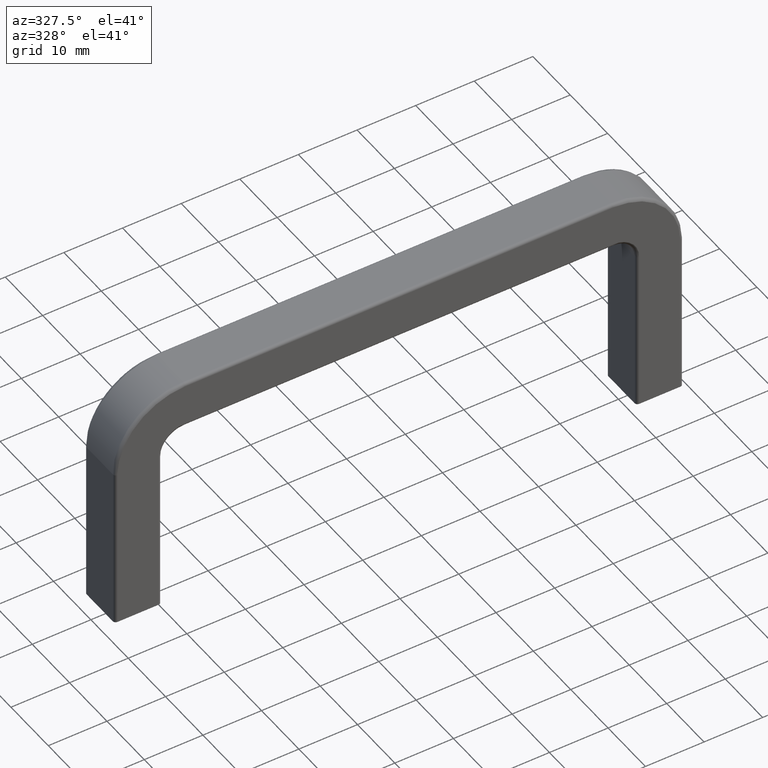
[diagram: clean part render]
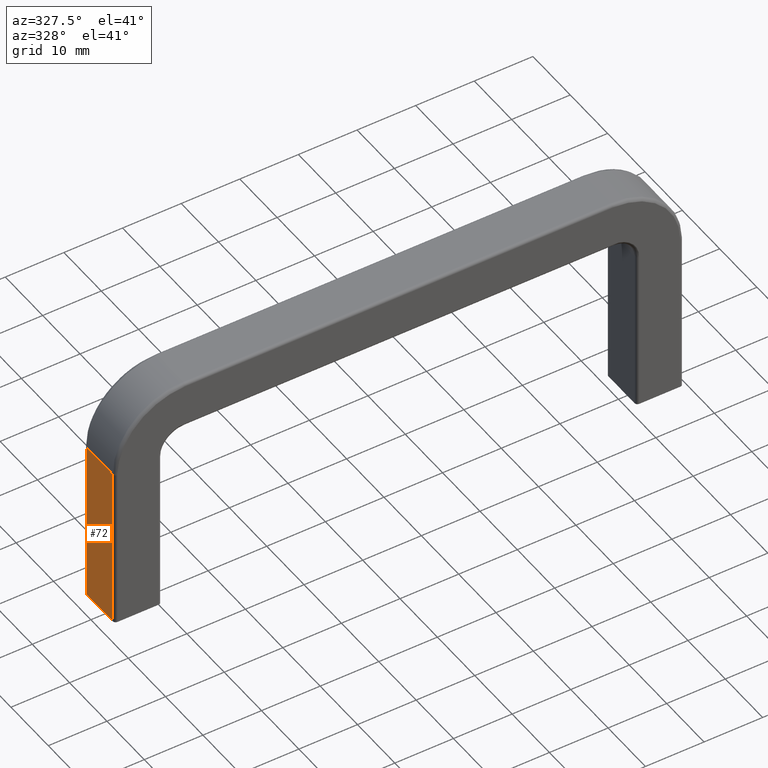
[diagram: same view with one face highlighted and labeled with its STEP entity id]
A machine part, auxiliary view. The second image highlights one B-rep face of the part: STEP entity #72.
In plain terms, the highlighted planar face has unit normal (-1, 0, 0).
Its self-contained STEP definition (entity closure, byte-faithful):
#72=ADVANCED_FACE('',(#401),#400,.T.);
#400=PLANE('',#862);
#401=FACE_OUTER_BOUND('',#863,.T.);
#859=CARTESIAN_POINT('',(-4.85000000000E+01,-4.20000000000E+00,-2.80000000000E+00));
#860=DIRECTION('',(-1.00000000000E+00,0.00000000000E+00,0.00000000000E+00));
#861=DIRECTION('',(0.00000000000E+00,0.00000000000E+00,1.00000000000E+00));
#862=AXIS2_PLACEMENT_3D('',#859,#860,#861);
#863=EDGE_LOOP('',(#1072,#1073,#1074,#1075));
#1072=ORIENTED_EDGE('',*,*,#1197,.T.);
#1073=ORIENTED_EDGE('',*,*,#1179,.F.);
#1074=ORIENTED_EDGE('',*,*,#1182,.F.);
#1075=ORIENTED_EDGE('',*,*,#1199,.T.);
#1179=EDGE_CURVE('',#1307,#1622,#1629,.T.);
#1182=EDGE_CURVE('',#1642,#1307,#1649,.T.);
#1197=EDGE_CURVE('',#1745,#1622,#1746,.T.);
#1199=EDGE_CURVE('',#1642,#1745,#1758,.T.);
#1307=VERTEX_POINT('',#1887);
#1622=VERTEX_POINT('',#2081);
#1629=LINE('',#2086,#2087);
#1642=VERTEX_POINT('',#2093);
#1649=LINE('',#2098,#2099);
#1745=VERTEX_POINT('',#2153);
#1746=LINE('',#2154,#2155);
#1758=LINE('',#2161,#2162);
#1887=CARTESIAN_POINT('',(-4.85000000000E+01,3.50000000000E+00,2.80000000000E+01));
#2081=CARTESIAN_POINT('',(-4.85000000000E+01,-3.50000000000E+00,2.80000000000E+01));
#2086=CARTESIAN_POINT('',(-4.85000000000E+01,3.50000000000E+00,2.80000000000E+01));
#2087=VECTOR('',#2088,7.00000000000E+00);
#2088=DIRECTION('',(0.00000000000E+00,-1.00000000000E+00,0.00000000000E+00));
#2093=CARTESIAN_POINT('',(-4.85000000000E+01,3.50000000000E+00,0.00000000000E+00));
#2098=CARTESIAN_POINT('',(-4.85000000000E+01,3.50000000000E+00,0.00000000000E+00));
#2099=VECTOR('',#2100,2.80000000000E+01);
#2100=DIRECTION('',(0.00000000000E+00,0.00000000000E+00,1.00000000000E+00));
#2153=CARTESIAN_POINT('',(-4.85000000000E+01,-3.50000000000E+00,0.00000000000E+00));
#2154=CARTESIAN_POINT('',(-4.85000000000E+01,-3.50000000000E+00,0.00000000000E+00));
#2155=VECTOR('',#2156,2.80000000000E+01);
#2156=DIRECTION('',(0.00000000000E+00,0.00000000000E+00,1.00000000000E+00));
#2161=CARTESIAN_POINT('',(-4.85000000000E+01,3.50000000000E+00,0.00000000000E+00));
#2162=VECTOR('',#2163,7.00000000000E+00);
#2163=DIRECTION('',(0.00000000000E+00,-1.00000000000E+00,0.00000000000E+00));